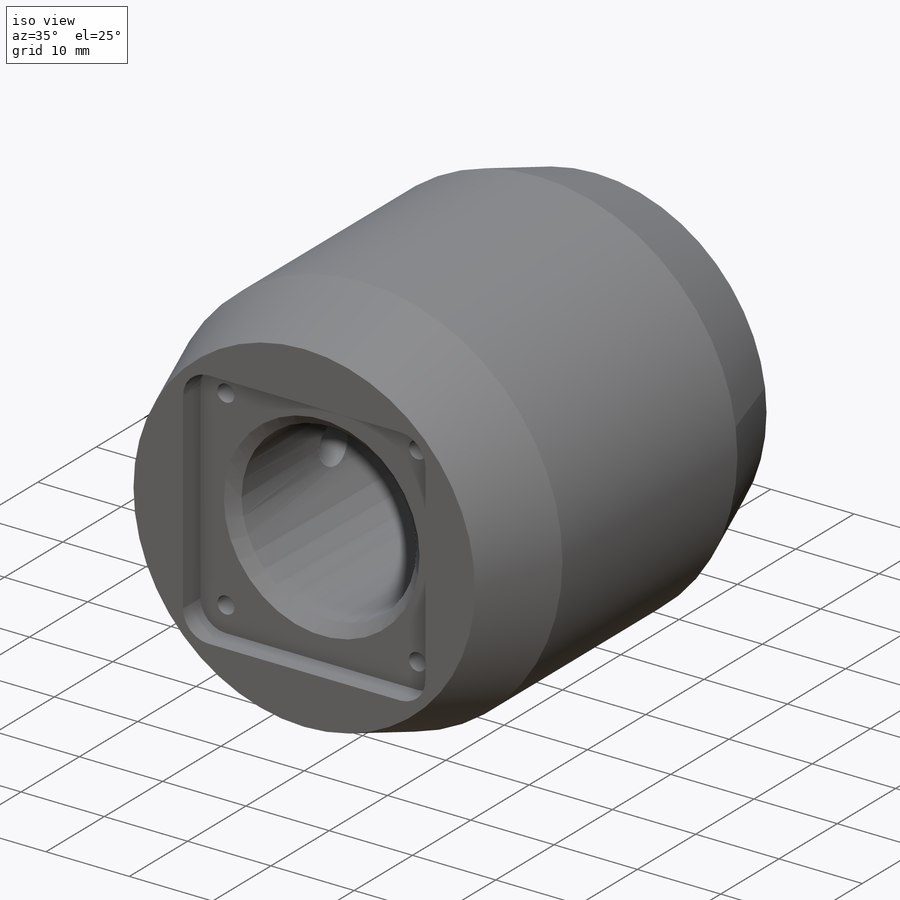
[diagram: iso view]
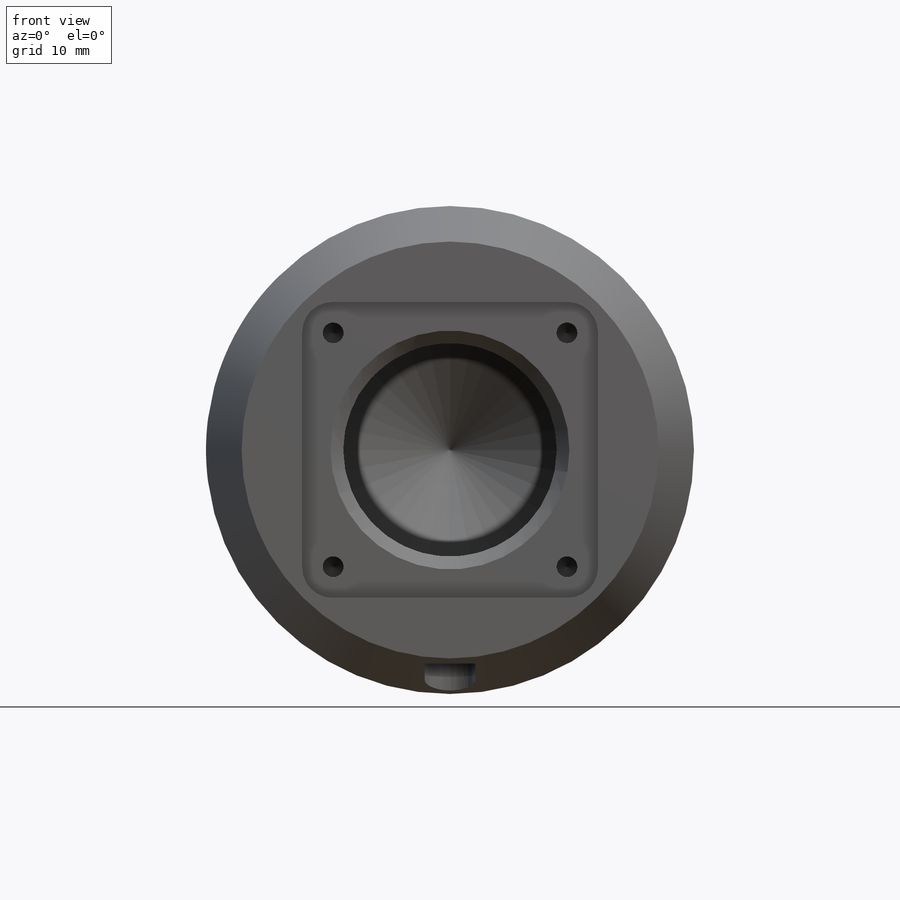
[diagram: front view]
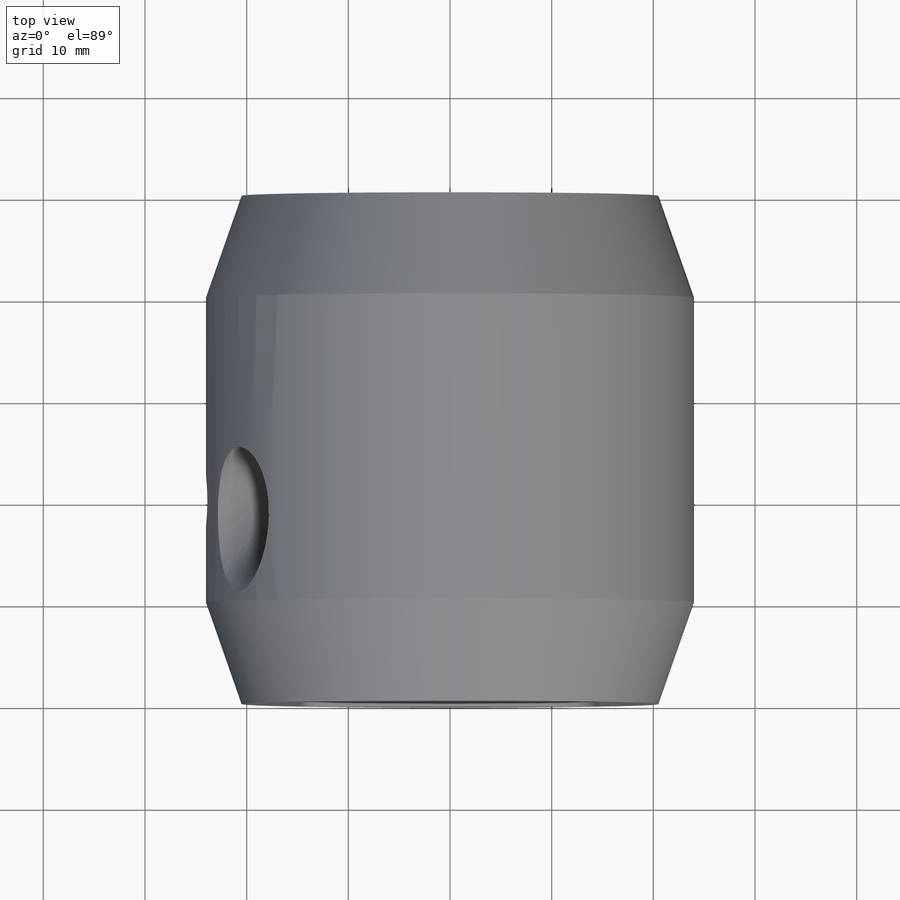
[diagram: top view]
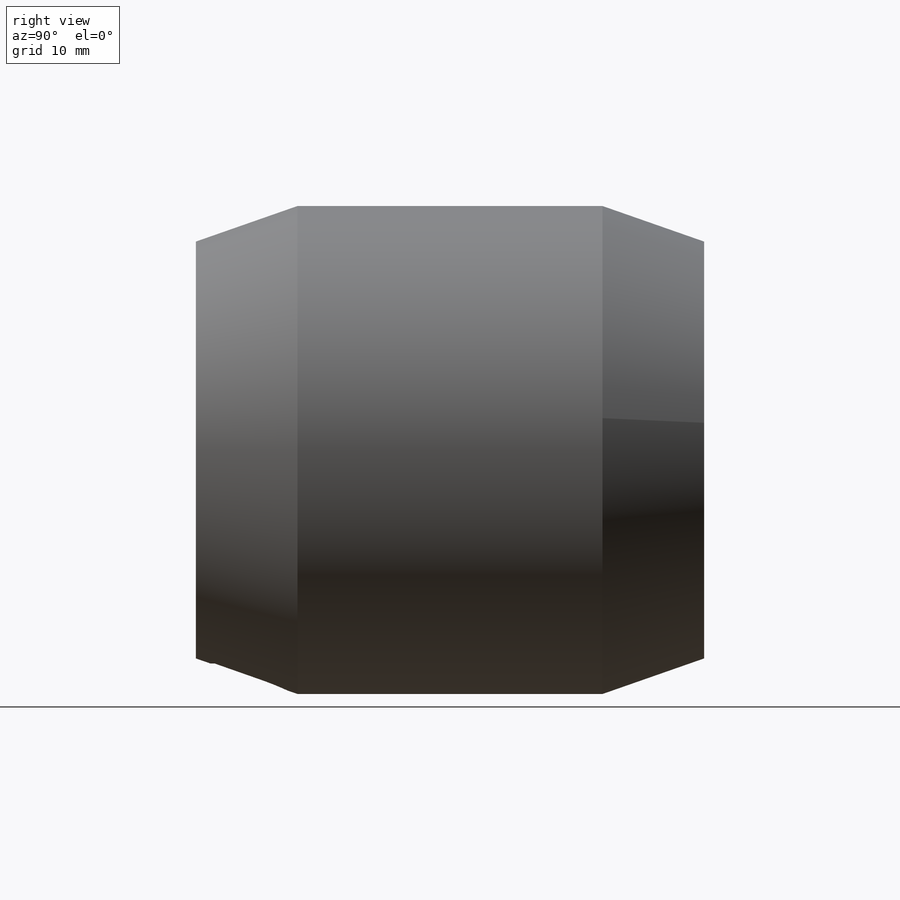
[diagram: right view]
SOLIDWORKS PART (.sldprt)
format: sldprt  version: not decoded by parser v0  size: 440,320 bytes
history: native  units: mm
features: sketch x11, thread x4, cut_extrude x3, hole x3, chamfer x2, plane x2, material x1, extrude x1, fillet x1 (+11 scaffold rows collapsed)
feature tree (39):
  scaffold x11  (default folders/planes/origin — collapsed)
  material  "DELRIN"
  sketch  "Sketch1"  dims[D1=48.0mm D2=14.0mm]
  extrude  "Extrude1"  Depth=50mm
  sketch  "Sketch2"  dims[D1=29.1mm]
  cut_extrude  "Extrude2"  Depth=3mm
  fillet  "Fillet1"  Radius=3mm
  hole  "Ø21.0 (21) Diameter Hole1"  Diameter=21mm Depth=37mm
  sketch  "Sketch12"
  sketch  "Sketch11"  dims[hole-wizard template sketch: 39 standard entries collapsed; hole parameters kept: c13.Hole Dia.=21.0mm c13.Hole Depth=37.0mm c13.Near C'Sink Dia.=23.5mm c13.D4=~33.297463mm c13.Near C'Sink Angle=90.0deg c14.D5=~14.816244mm c14.Drill Angle=118.0deg]
  hole  "M2.5 Tapped Hole2"  Diameter=2.05mm Depth=7.25mm
  sketch  "Sketch8"  dims[D1=23.0mm]
  sketch  "Sketch7"  dims[hole-wizard template sketch: 47 standard entries collapsed; hole parameters kept: c15.Tap Drill Depth=7.25mm c15.D3=~14.816244mm c15.Drill Angle=118.0deg]
  thread  "Hole Thread2"  Diameter=5mm  [1 undecoded]
  thread  "Hole Thread3"  Diameter=5mm  [1 undecoded]
  thread  "Hole Thread4"  Diameter=5mm  [1 undecoded]
  thread  "Hole Thread5"  Diameter=5mm  [1 undecoded]
  chamfer  "Chamfer2"  Distance=10mm
  sketch  "Sketch9"  dims[D1=5.0mm D2=6.5mm]
  cut_extrude  "Extrude4"  Depth=21mm
  chamfer  "Chamfer3"  Distance=3.5mm
  sketch  "3DSketch1"  dims[c1.D1=~53.377645mm c2.D1=30.0deg c2.D2=~65.078794mm c3.D2=45.0deg c3.D3=8.0mm c3.D4=10.0mm c3.D5=10.0mm]
  plane  "Plane1"
  plane  "Plane2"
  sketch  "Sketch13"  dims[D1=10.0mm]
  cut_extrude  "Extrude5"  [1 undecoded]
  hole  "Ø5.0 (5) Diameter Hole2"  Diameter=5mm Depth=24mm
  sketch  "Sketch18"  dims[c1.D1=15.0mm c1.D2=18.0mm c2.D1=20.0mm]
  sketch  "Sketch19"  dims[hole-wizard template sketch: 60 standard entries collapsed; hole parameters kept: c18.Thru Hole Depth=24.0mm]
decode coverage: 23 of 25 modeling features carry decoded parameters
note: ~ marks probable driven/reference dimensions
note: 5 parameter values undecoded
note: suppression state not decoded; provenance and decode notes live in map.json
